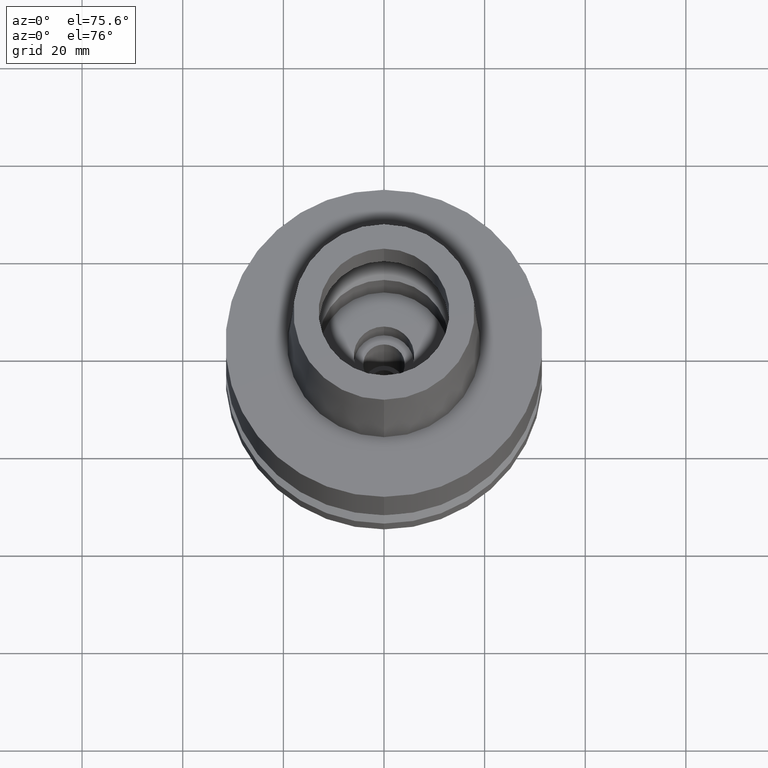
[diagram: clean part render]
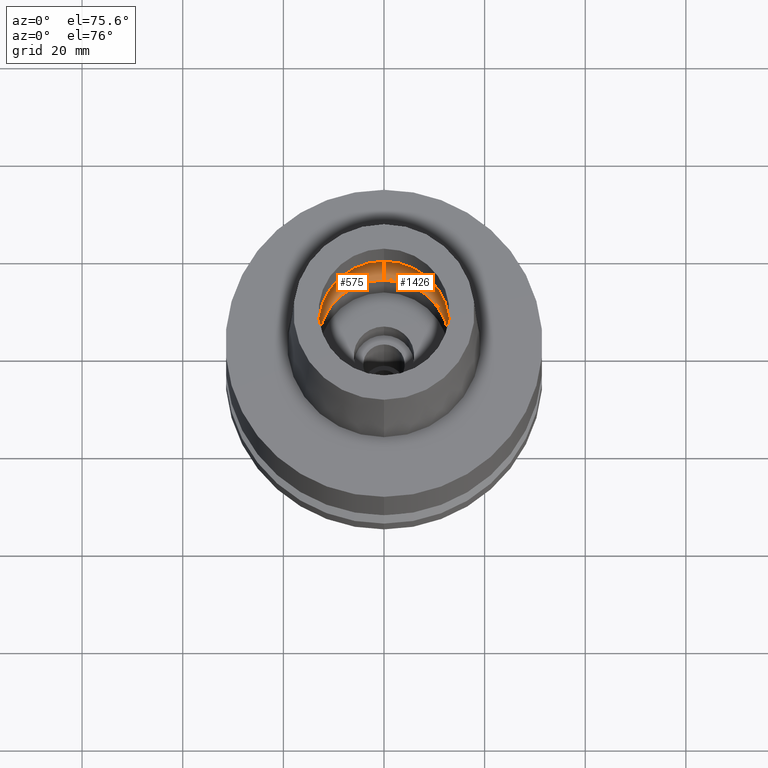
[diagram: same view with one multi-face feature highlighted, each face labeled with its STEP entity id]
A machine part, auxiliary view. The highlighted faces form ONE feature: a constant-radius fillet chain: 2 tangent blend faces with common blend radius 6 mm. The faces share edges in the B-rep.
Their STEP definitions:
[1] entity #1426 (Torus):
#52 = ORIENTED_EDGE ( 'NONE', *, *, #94, .T. ) ;
#78 = CIRCLE ( 'NONE', #432, 6.000000000000000000 ) ;
#94 = EDGE_CURVE ( 'NONE', #151, #1778, #78, .T. ) ;
#151 = VERTEX_POINT ( 'NONE', #1280 ) ;
#212 = VERTEX_POINT ( 'NONE', #1321 ) ;
#214 = DIRECTION ( 'NONE',  ( 1.000000000000000000, 0.0000000000000000000, 0.0000000000000000000 ) ) ;
#323 = EDGE_CURVE ( 'NONE', #151, #212, #2328, .T. ) ;
#324 = CARTESIAN_POINT ( 'NONE',  ( 0.0000000000000000000, 16.00000000000000000, 5.245999999999999552 ) ) ;
#347 = DIRECTION ( 'NONE',  ( 0.0000000000000000000, 1.000000000000000000, 0.0000000000000000000 ) ) ;
#432 = AXIS2_PLACEMENT_3D ( 'NONE', #2550, #2778, #2126 ) ;
#441 = DIRECTION ( 'NONE',  ( 0.0000000000000000000, 1.000000000000000000, 0.0000000000000000000 ) ) ;
#447 = EDGE_LOOP ( 'NONE', ( #1087, #52, #958, #941 ) ) ;
#465 = TOROIDAL_SURFACE ( 'NONE', #1234, 10.00000000000000000, 6.000000000000000000 ) ;
#511 = AXIS2_PLACEMENT_3D ( 'NONE', #1266, #2378, #441 ) ;
#550 = FACE_OUTER_BOUND ( 'NONE', #447, .T. ) ;
#758 = AXIS2_PLACEMENT_3D ( 'NONE', #1509, #1080, #1355 ) ;
#816 = EDGE_CURVE ( 'NONE', #212, #1451, #1577, .T. ) ;
#922 = CARTESIAN_POINT ( 'NONE',  ( 0.0000000000000000000, -16.00000000000000000, 5.245999999999999552 ) ) ;
#939 = AXIS2_PLACEMENT_3D ( 'NONE', #1265, #214, #2389 ) ;
#941 = ORIENTED_EDGE ( 'NONE', *, *, #816, .F. ) ;
#958 = ORIENTED_EDGE ( 'NONE', *, *, #1044, .F. ) ;
#1044 = EDGE_CURVE ( 'NONE', #1451, #1778, #1385, .T. ) ;
#1080 = DIRECTION ( 'NONE',  ( 0.0000000000000000000, 0.0000000000000000000, 1.000000000000000000 ) ) ;
#1087 = ORIENTED_EDGE ( 'NONE', *, *, #323, .F. ) ;
#1209 = DIRECTION ( 'NONE',  ( 0.0000000000000000000, 0.0000000000000000000, 1.000000000000000000 ) ) ;
#1234 = AXIS2_PLACEMENT_3D ( 'NONE', #1424, #1209, #347 ) ;
#1265 = CARTESIAN_POINT ( 'NONE',  ( 0.0000000000000000000, 10.00000000000000000, 5.245999999999999552 ) ) ;
#1266 = CARTESIAN_POINT ( 'NONE',  ( 0.0000000000000000000, 0.0000000000000000000, 5.245999999999999552 ) ) ;
#1280 = CARTESIAN_POINT ( 'NONE',  ( 0.0000000000000000000, -13.00000000000000000, 0.04984757729336000004 ) ) ;
#1321 = CARTESIAN_POINT ( 'NONE',  ( 0.0000000000000000000, 13.00000000000000000, 0.04984757729338000487 ) ) ;
#1355 = DIRECTION ( 'NONE',  ( 0.0000000000000000000, -1.000000000000000000, 0.0000000000000000000 ) ) ;
#1385 = CIRCLE ( 'NONE', #511, 16.00000000000000000 ) ;
#1424 = CARTESIAN_POINT ( 'NONE',  ( 0.0000000000000000000, 0.0000000000000000000, 5.245999999999999552 ) ) ;
#1426 = ADVANCED_FACE ( 'NONE', ( #550 ), #465, .F. ) ;
#1451 = VERTEX_POINT ( 'NONE', #324 ) ;
#1509 = CARTESIAN_POINT ( 'NONE',  ( 0.0000000000000000000, 0.0000000000000000000, 0.04984757729336000004 ) ) ;
#1577 = CIRCLE ( 'NONE', #939, 6.000000000000000000 ) ;
#1778 = VERTEX_POINT ( 'NONE', #922 ) ;
#2126 = DIRECTION ( 'NONE',  ( 0.0000000000000000000, -0.5000000000000169864, -0.8660254037844289376 ) ) ;
#2328 = CIRCLE ( 'NONE', #758, 13.00000000000000000 ) ;
#2378 = DIRECTION ( 'NONE',  ( 0.0000000000000000000, 0.0000000000000000000, -1.000000000000000000 ) ) ;
#2389 = DIRECTION ( 'NONE',  ( 0.0000000000000000000, 0.5000000000000169864, -0.8660254037844289376 ) ) ;
#2550 = CARTESIAN_POINT ( 'NONE',  ( 0.0000000000000000000, -10.00000000000000000, 5.245999999999999552 ) ) ;
#2778 = DIRECTION ( 'NONE',  ( -1.000000000000000000, 0.0000000000000000000, 0.0000000000000000000 ) ) ;
[2] entity #575 (Torus):
#69 = ORIENTED_EDGE ( 'NONE', *, *, #816, .T. ) ;
#78 = CIRCLE ( 'NONE', #432, 6.000000000000000000 ) ;
#79 = ORIENTED_EDGE ( 'NONE', *, *, #94, .F. ) ;
#94 = EDGE_CURVE ( 'NONE', #151, #1778, #78, .T. ) ;
#151 = VERTEX_POINT ( 'NONE', #1280 ) ;
#154 = CIRCLE ( 'NONE', #336, 16.00000000000000000 ) ;
#212 = VERTEX_POINT ( 'NONE', #1321 ) ;
#214 = DIRECTION ( 'NONE',  ( 1.000000000000000000, 0.0000000000000000000, 0.0000000000000000000 ) ) ;
#324 = CARTESIAN_POINT ( 'NONE',  ( 0.0000000000000000000, 16.00000000000000000, 5.245999999999999552 ) ) ;
#336 = AXIS2_PLACEMENT_3D ( 'NONE', #1439, #1831, #2681 ) ;
#425 = CIRCLE ( 'NONE', #1974, 13.00000000000000000 ) ;
#432 = AXIS2_PLACEMENT_3D ( 'NONE', #2550, #2778, #2126 ) ;
#493 = EDGE_LOOP ( 'NONE', ( #1775, #79, #1988, #69 ) ) ;
#515 = CARTESIAN_POINT ( 'NONE',  ( 0.0000000000000000000, 0.0000000000000000000, 5.245999999999999552 ) ) ;
#529 = DIRECTION ( 'NONE',  ( 0.0000000000000000000, 1.000000000000000000, 0.0000000000000000000 ) ) ;
#575 = ADVANCED_FACE ( 'NONE', ( #1197 ), #2556, .F. ) ;
#678 = DIRECTION ( 'NONE',  ( 0.0000000000000000000, 0.0000000000000000000, 1.000000000000000000 ) ) ;
#816 = EDGE_CURVE ( 'NONE', #212, #1451, #1577, .T. ) ;
#922 = CARTESIAN_POINT ( 'NONE',  ( 0.0000000000000000000, -16.00000000000000000, 5.245999999999999552 ) ) ;
#939 = AXIS2_PLACEMENT_3D ( 'NONE', #1265, #214, #2389 ) ;
#1152 = EDGE_CURVE ( 'NONE', #212, #151, #425, .T. ) ;
#1197 = FACE_OUTER_BOUND ( 'NONE', #493, .T. ) ;
#1265 = CARTESIAN_POINT ( 'NONE',  ( 0.0000000000000000000, 10.00000000000000000, 5.245999999999999552 ) ) ;
#1280 = CARTESIAN_POINT ( 'NONE',  ( 0.0000000000000000000, -13.00000000000000000, 0.04984757729336000004 ) ) ;
#1321 = CARTESIAN_POINT ( 'NONE',  ( 0.0000000000000000000, 13.00000000000000000, 0.04984757729338000487 ) ) ;
#1332 = CARTESIAN_POINT ( 'NONE',  ( 0.0000000000000000000, 0.0000000000000000000, 0.04984757729336000004 ) ) ;
#1428 = DIRECTION ( 'NONE',  ( 0.0000000000000000000, 0.0000000000000000000, 1.000000000000000000 ) ) ;
#1439 = CARTESIAN_POINT ( 'NONE',  ( 0.0000000000000000000, 0.0000000000000000000, 5.245999999999999552 ) ) ;
#1451 = VERTEX_POINT ( 'NONE', #324 ) ;
#1464 = EDGE_CURVE ( 'NONE', #1778, #1451, #154, .T. ) ;
#1548 = DIRECTION ( 'NONE',  ( 0.0000000000000000000, 1.000000000000000000, 0.0000000000000000000 ) ) ;
#1577 = CIRCLE ( 'NONE', #939, 6.000000000000000000 ) ;
#1775 = ORIENTED_EDGE ( 'NONE', *, *, #1464, .F. ) ;
#1778 = VERTEX_POINT ( 'NONE', #922 ) ;
#1831 = DIRECTION ( 'NONE',  ( 0.0000000000000000000, 0.0000000000000000000, -1.000000000000000000 ) ) ;
#1974 = AXIS2_PLACEMENT_3D ( 'NONE', #1332, #678, #1548 ) ;
#1988 = ORIENTED_EDGE ( 'NONE', *, *, #1152, .F. ) ;
#2126 = DIRECTION ( 'NONE',  ( 0.0000000000000000000, -0.5000000000000169864, -0.8660254037844289376 ) ) ;
#2389 = DIRECTION ( 'NONE',  ( 0.0000000000000000000, 0.5000000000000169864, -0.8660254037844289376 ) ) ;
#2550 = CARTESIAN_POINT ( 'NONE',  ( 0.0000000000000000000, -10.00000000000000000, 5.245999999999999552 ) ) ;
#2556 = TOROIDAL_SURFACE ( 'NONE', #2707, 10.00000000000000000, 6.000000000000000000 ) ;
#2681 = DIRECTION ( 'NONE',  ( 0.0000000000000000000, -1.000000000000000000, 0.0000000000000000000 ) ) ;
#2707 = AXIS2_PLACEMENT_3D ( 'NONE', #515, #1428, #529 ) ;
#2778 = DIRECTION ( 'NONE',  ( -1.000000000000000000, 0.0000000000000000000, 0.0000000000000000000 ) ) ;